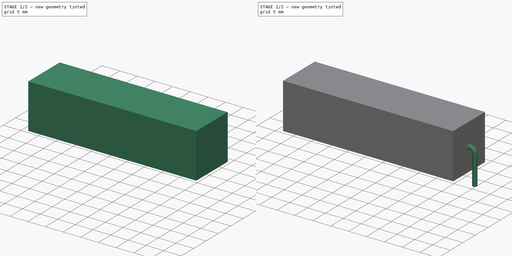
[diagram: build sequence overview — one tinted view per stage of 2, left to right]
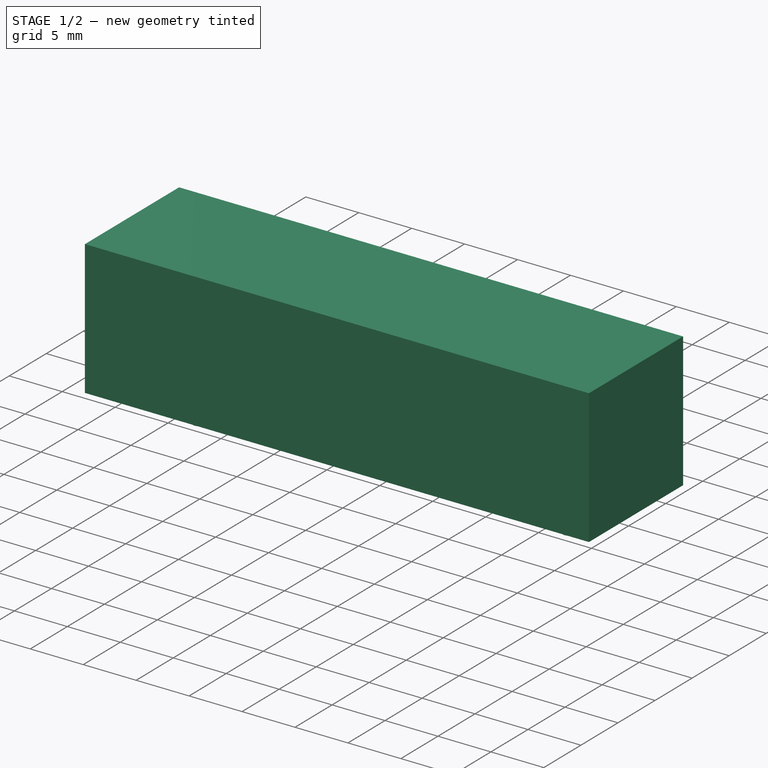
[diagram: stage 1 of 2 — iso view after this stage's code; geometry added in this stage tinted green]
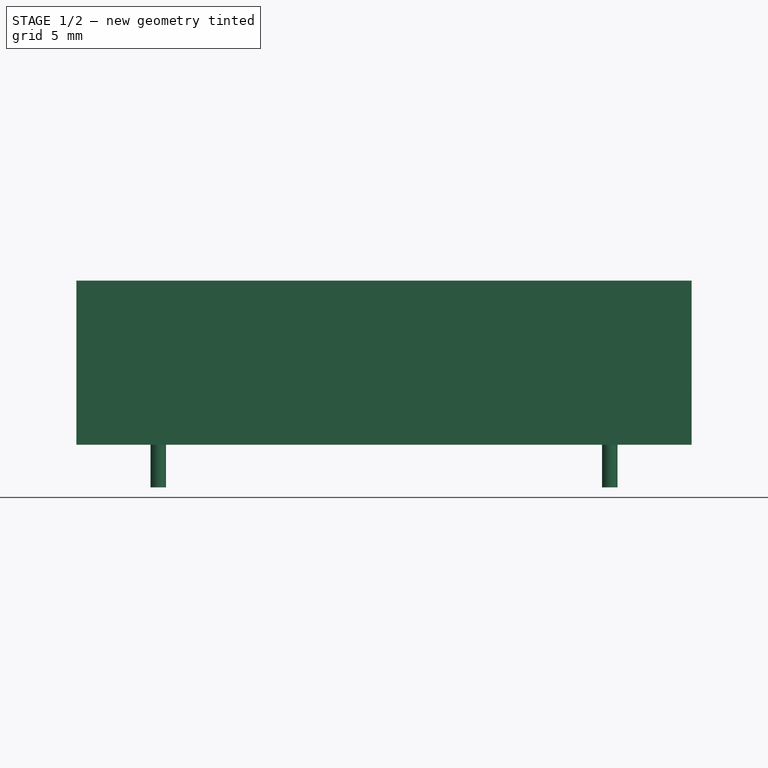
[diagram: stage 1 of 2 — front view after this stage's code; geometry added in this stage tinted green]
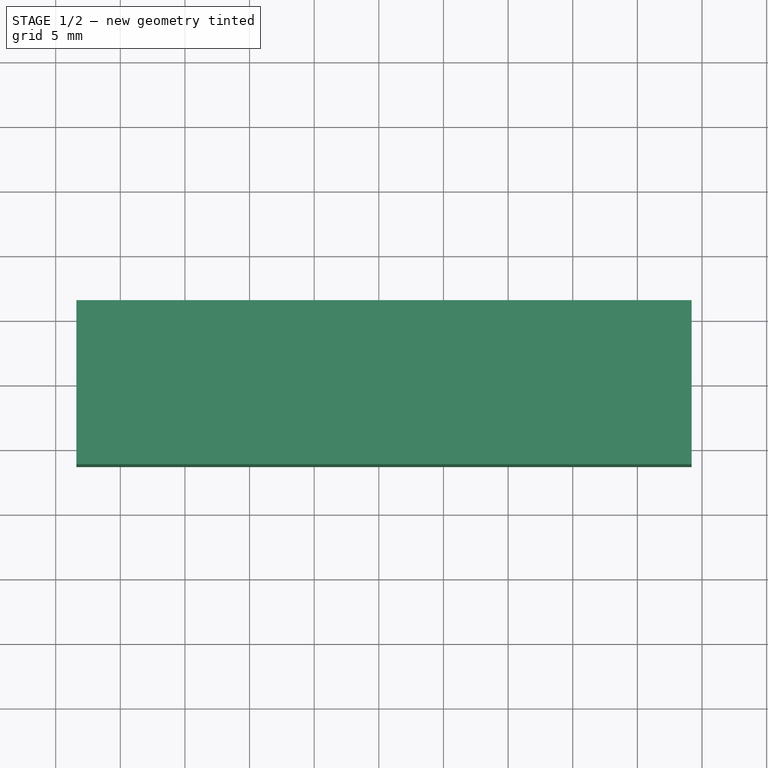
[diagram: stage 1 of 2 — top view after this stage's code; geometry added in this stage tinted green]
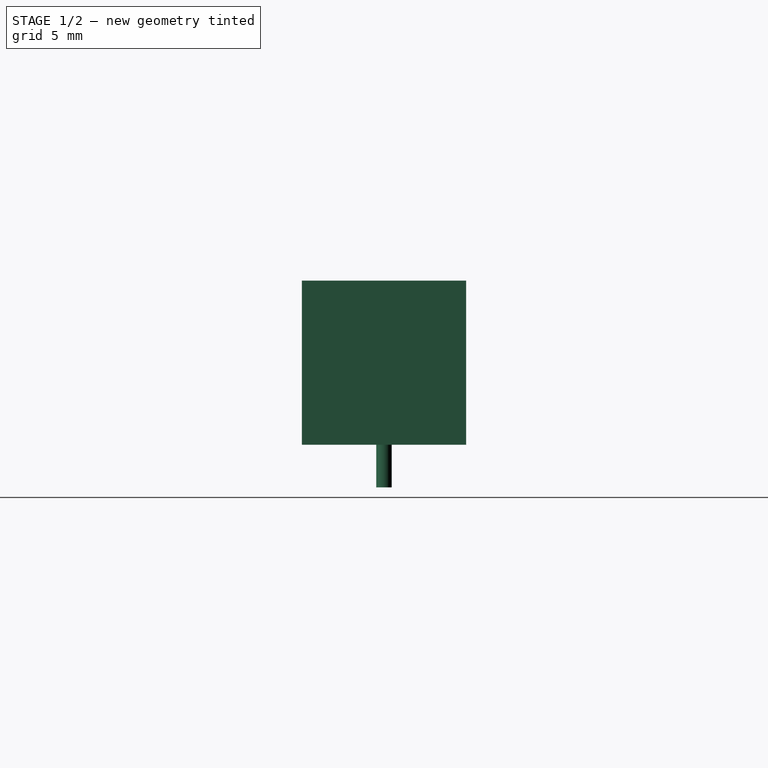
[diagram: stage 1 of 2 — right view after this stage's code; geometry added in this stage tinted green]
FCSTD DOCUMENT  (FreeCAD 0.16R6703 (Git))
Label: Resistor_Axial_Shunt_L47.6mm_W12.7mm_PS34.93mm_P50.80mm
License: All rights reserved
LicenseURL: http://en.wikipedia.org/wiki/All_rights_reserved
objects: Sketcher::SketchObject×4, PartDesign::Pad×2, Spreadsheet::Sheet×1, Part::Sweep×1
note: 9 computed .brp shape members not serialized (recipe doc carries the construction recipe); baked Part::Feature solids carry a one-line shape summary decoded from their .brp

FEATURE [Sketcher::SketchObject] Sketch002
  Placement = pos=(0,0,0) rot=(1,0,0;1.5708rad)
  expr: Constraints[11] = (dimensions.RM - dimensions.L) / 2
  expr: Constraints[10] = dimensions.L
  expr: Constraints[9] = dimensions.dd
  sketch-geometry (4):
    g0: LineSegment StartX=1.6 StartY=12.8 StartZ=0 EndX=49.2 EndY=12.8 EndZ=0
    g1: LineSegment StartX=49.2 StartY=12.8 StartZ=0 EndX=49.2 EndY=0.1 EndZ=0
    g2: LineSegment StartX=49.2 StartY=0.1 StartZ=0 EndX=1.6 EndY=0.1 EndZ=0
    g3: LineSegment StartX=1.6 StartY=0.1 StartZ=0 EndX=1.6 EndY=12.8 EndZ=0
  constraints (12):
    c: Coincident(g0,g1)
    c: Coincident(g1,g2)
    c: Coincident(g2,g3)
    c: Coincident(g3,g0)
    c: Horizontal(g0)
    c: Horizontal(g2)
    c: Vertical(g1)
    c: Vertical(g3)
    c: DistanceY(g-1,g2) = 0.1
    c: DistanceY(g3,g3) = 12.7
    c: DistanceX(g0,g0) = 47.6
    c: DistanceX(g-1,g2) = 1.6
FEATURE [PartDesign::Pad] Pad
  Length = 12.7
  Length2 = 100
  Midplane = true
  Placement = pos=(0,0,0) rot=(1,0,0;1.5708rad)
  Sketch = -> Sketch002
  Type = 0
  expr: Length = dimensions.d
FEATURE [Sketcher::SketchObject] Sketch004
  Placement = pos=(0,0,-0.2) rot=(0,0,1;0rad)
  expr: Constraints[4] = Spreadsheet.d_wire / 2
  expr: Constraints[3] = (Spreadsheet.RM - Spreadsheet.RMinner) / 2
  expr: Constraints[2] = Spreadsheet.RMinner
  sketch-geometry (2):
    g0: Circle CenterX=7.935 CenterY=0 CenterZ=0 NormalX=0 NormalY=0 NormalZ=1 Radius=0.6
    g1: Circle CenterX=42.865 CenterY=0 CenterZ=0 NormalX=0 NormalY=0 NormalZ=1 Radius=0.6
  constraints (6):
    c: PointOnObject(g0,g-1)
    c: PointOnObject(g1,g-1)
    c: DistanceX(g0,g1) = 34.93
    c: DistanceX(g-1,g0) = 7.935
    c: Radius(g0) = 0.6
    c: Equal(g0,g1)
FEATURE [PartDesign::Pad] Pad001
  Length = 6
  Length2 = 100
  Midplane = true
  Placement = pos=(0,0,-0.2) rot=(0,0,1;0rad)
  Sketch = -> Sketch004
  Type = 0
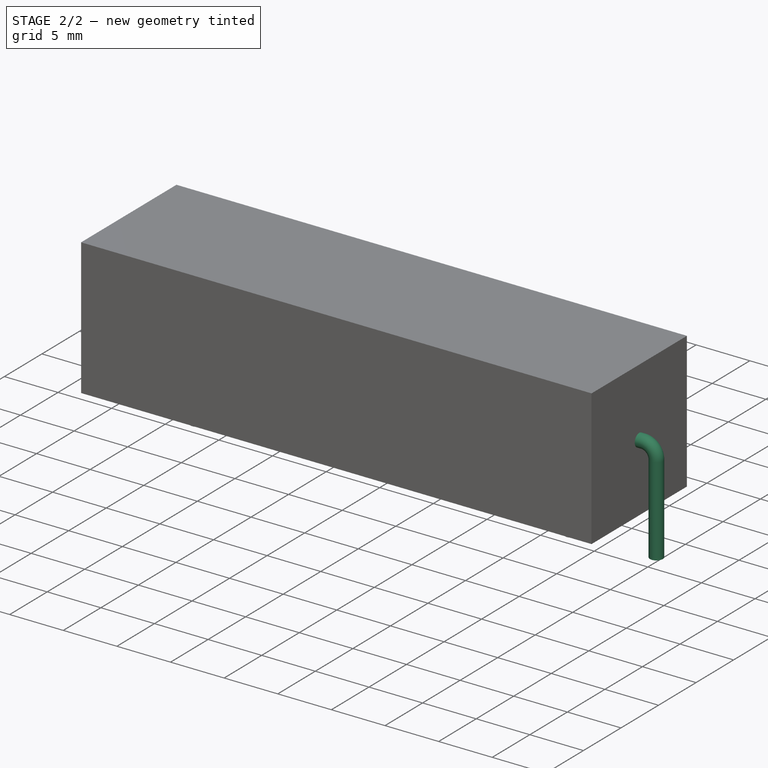
[diagram: stage 2 of 2 — iso view after this stage's code; geometry added in this stage tinted green]
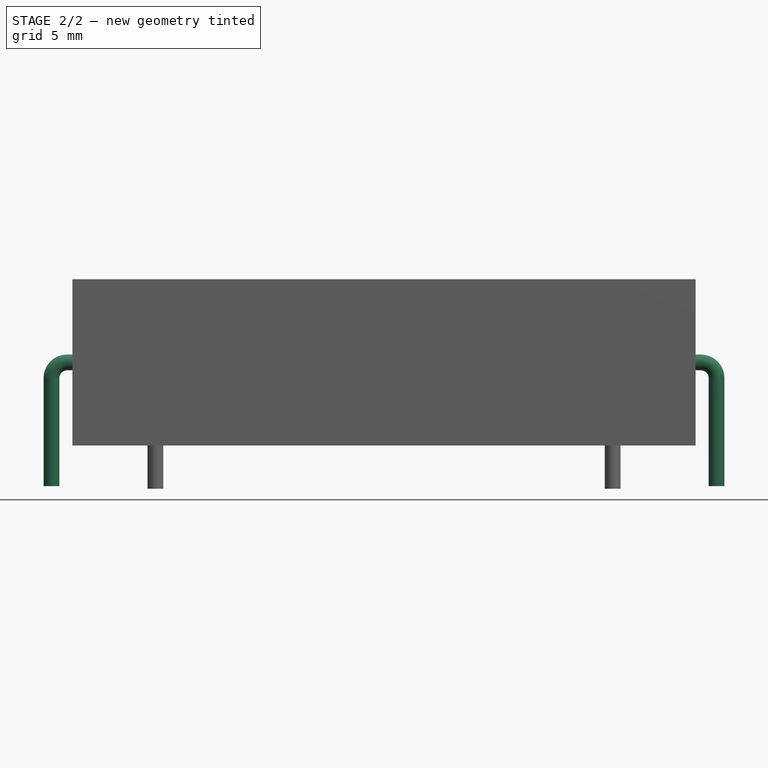
[diagram: stage 2 of 2 — front view after this stage's code; geometry added in this stage tinted green]
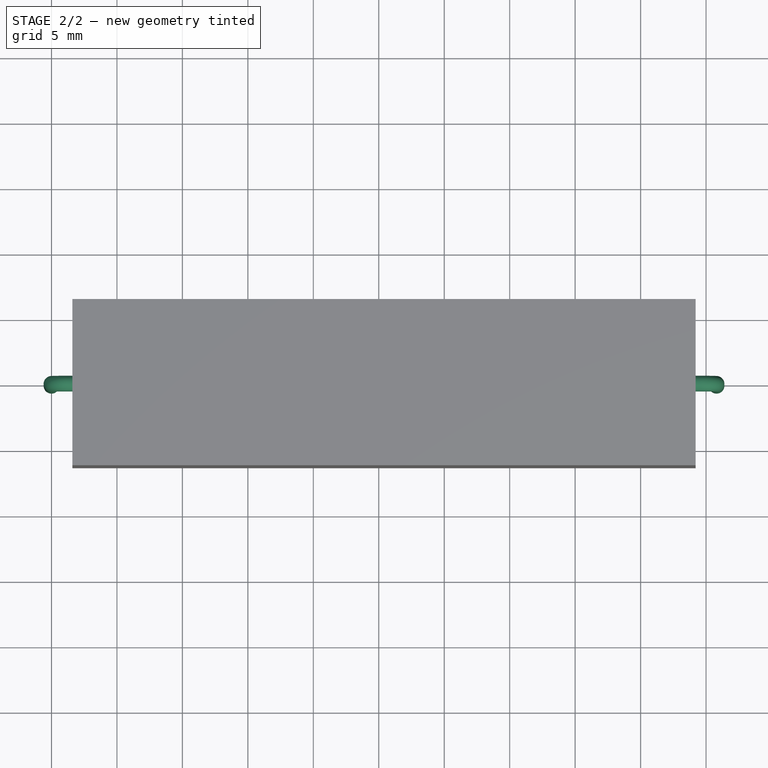
[diagram: stage 2 of 2 — top view after this stage's code; geometry added in this stage tinted green]
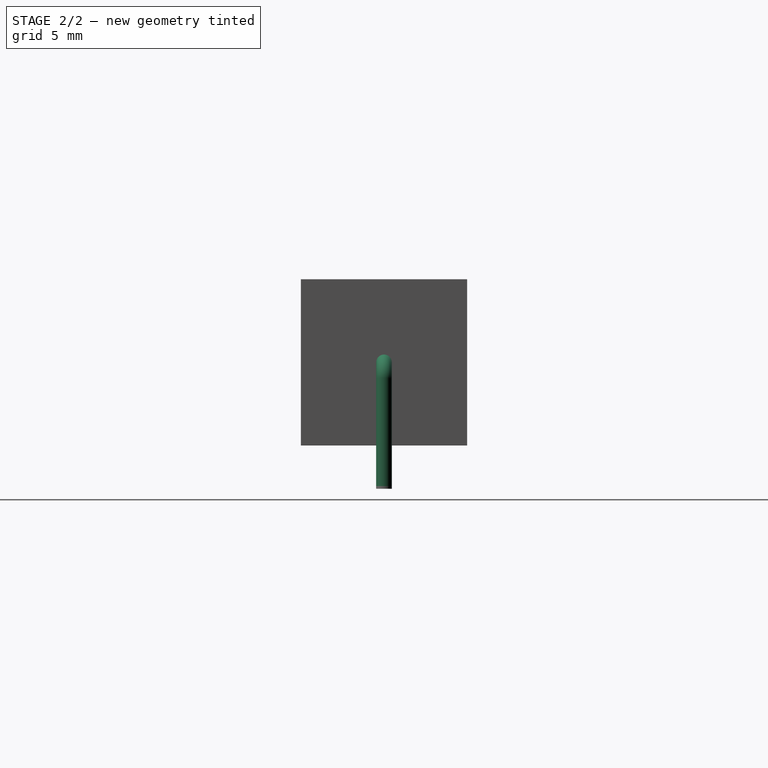
[diagram: stage 2 of 2 — right view after this stage's code; geometry added in this stage tinted green]
FEATURE [Sketcher::SketchObject] Sketch001
  Placement = pos=(0,0,0) rot=(1,0,0;1.5708rad)
  expr: Constraints[15] = dimensions.d_wire
  expr: Constraints[20] = dimensions.d_wire
  expr: Constraints[18] = dimensions.d / 2 + 0.1
  expr: Constraints[12] = dimensions.RM
  expr: Constraints[7] = dimensions.d_wire
  sketch-geometry (7):
    g0: LineSegment StartX=0 StartY=-3 StartZ=0 EndX=0 EndY=5.25 EndZ=0
    g1: ArcOfCircle CenterX=1.2 CenterY=5.25 CenterZ=0 NormalX=0 NormalY=0 NormalZ=1 Radius=1.2 StartAngle=1.57079 EndAngle=3.14159
    g2: LineSegment [constr] StartX=0 StartY=5.25 StartZ=0 EndX=1.2 EndY=5.25 EndZ=0
    g3: LineSegment [constr] StartX=1.2 StartY=5.25 StartZ=0 EndX=1.2 EndY=6.45 EndZ=0
    g4: LineSegment StartX=1.20001 StartY=6.45 StartZ=0 EndX=49.6 EndY=6.45 EndZ=0
    g5: LineSegment StartX=50.8 StartY=5.25 StartZ=0 EndX=50.8 EndY=-3 EndZ=0
    g6: ArcOfCircle CenterX=49.6 CenterY=5.25 CenterZ=0 NormalX=0 NormalY=0 NormalZ=1 Radius=1.2 StartAngle=0 EndAngle=1.5708
  constraints (23):
    c: Vertical(g0)
    c: Coincident(g1,g0)
    c: Coincident(g2,g0)
    c: Coincident(g2,g1)
    c: Horizontal(g2)
    c: Coincident(g3,g1)
    c: Vertical(g3)
    c: DistanceY(g3,g3) = 1.2
    c: Coincident(g4,g1)
    c: Horizontal(g4)
    c: Vertical(g5)
    c: Equal(g5,g0)
    c: DistanceX(g-1,g5) = 50.8
    c: Coincident(g6,g4)
    c: Coincident(g6,g5)
    c: DistanceX(g6,g5) = 1.2
    c: PointOnObject(g0,g-2)
    c: DistanceY(g0,g-1) = 3
    c: DistanceY(g-1,g1) = 6.45
    c: DistanceY(g0,g5) = 0
    c: DistanceX(g0,g1) = 1.2
    c: DistanceX(g6,g4) = 0
    c: DistanceY(g6,g5) = 0
FEATURE [Spreadsheet::Sheet] Spreadsheet  label="dimensions"
  cells = A1=L; B1(L)=47.6; A2=d; B2(d)=12.7; C2(dd)=12.7; A3=RM; B3(RM)=50.8; C3(RMinner)=34.93; A4=d_wire; B4(d_wire)=1.2
FEATURE [Sketcher::SketchObject] Sketch
  Placement = pos=(0,0,-2) rot=(0,0,1;0rad)
  expr: Constraints[1] = dimensions.d_wire / 2
  sketch-geometry (1):
    g0: Circle CenterX=0 CenterY=0 CenterZ=0 NormalX=0 NormalY=0 NormalZ=1 Radius=0.6
  constraints (2):
    c: Coincident(g0,g-1)
    c: Radius(g0) = 0.6
FEATURE [Part::Sweep] Sweep
  Frenet = false
  Sections = -> [Sketch]
  Solid = true
  Spine = -> Sketch001
  Transition = 1
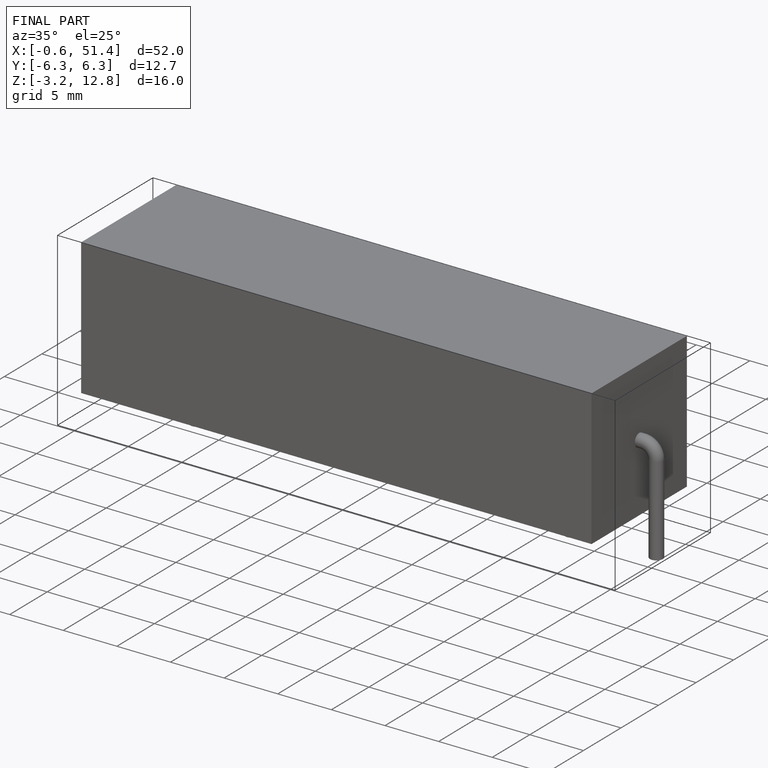
[diagram: finished part — iso view with bounding-box wireframe]
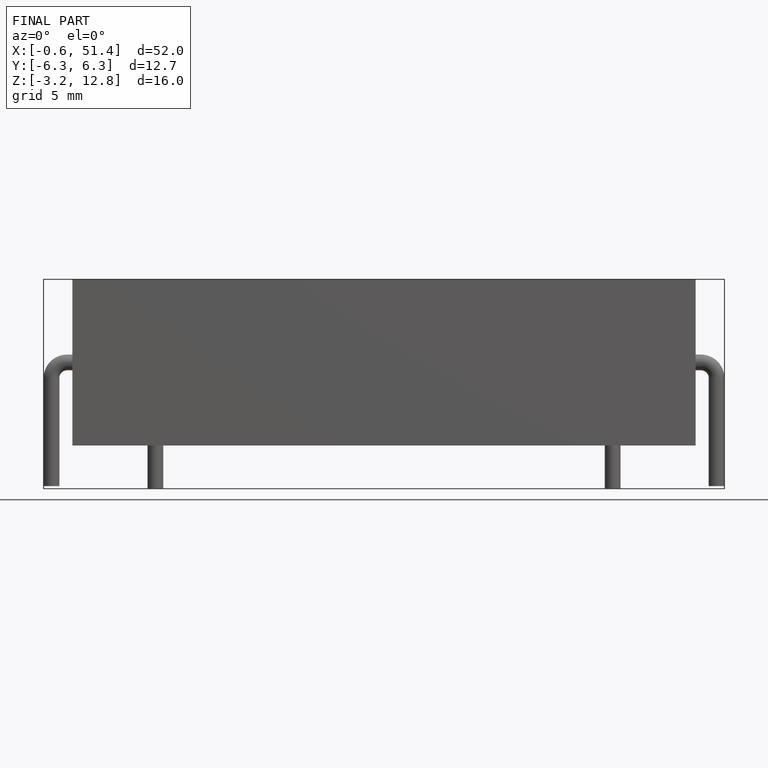
[diagram: finished part — front view with bounding-box wireframe]
